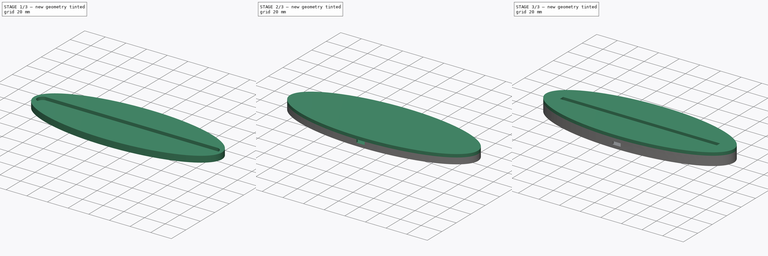
[diagram: build sequence overview — one tinted view per stage of 3, left to right]
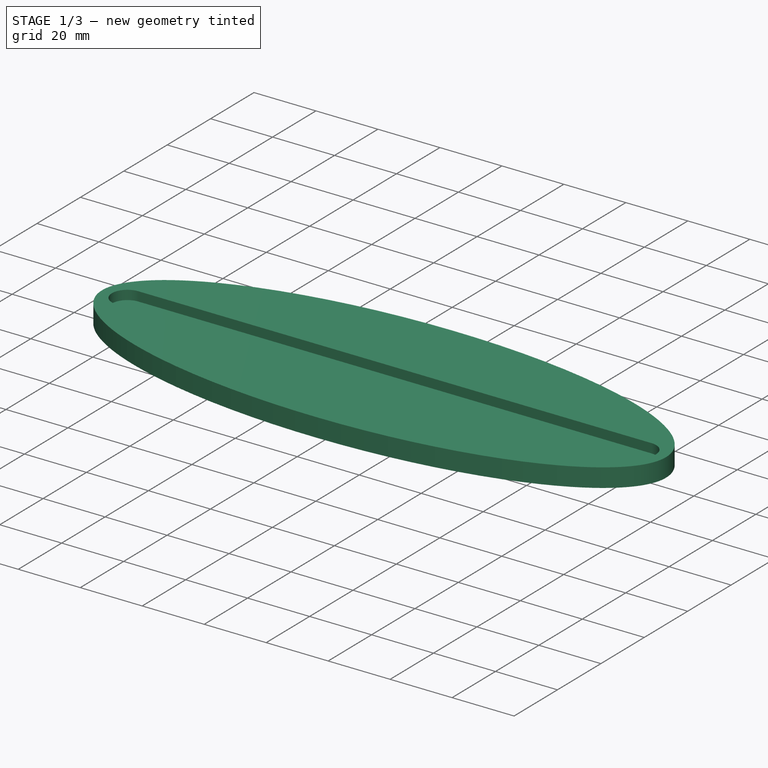
[diagram: stage 1 of 3 — iso view after this stage's code; geometry added in this stage tinted green]
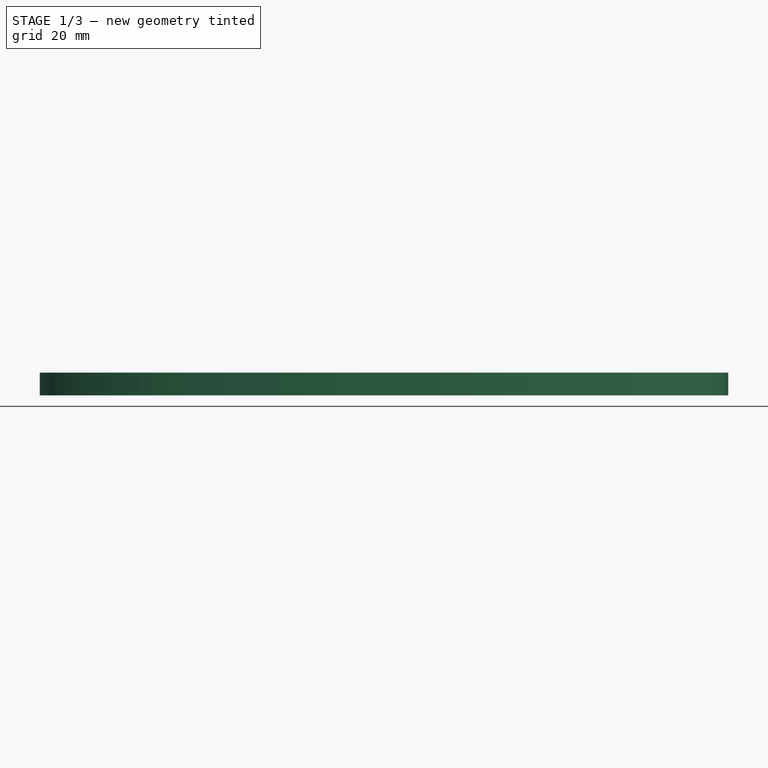
[diagram: stage 1 of 3 — front view after this stage's code; geometry added in this stage tinted green]
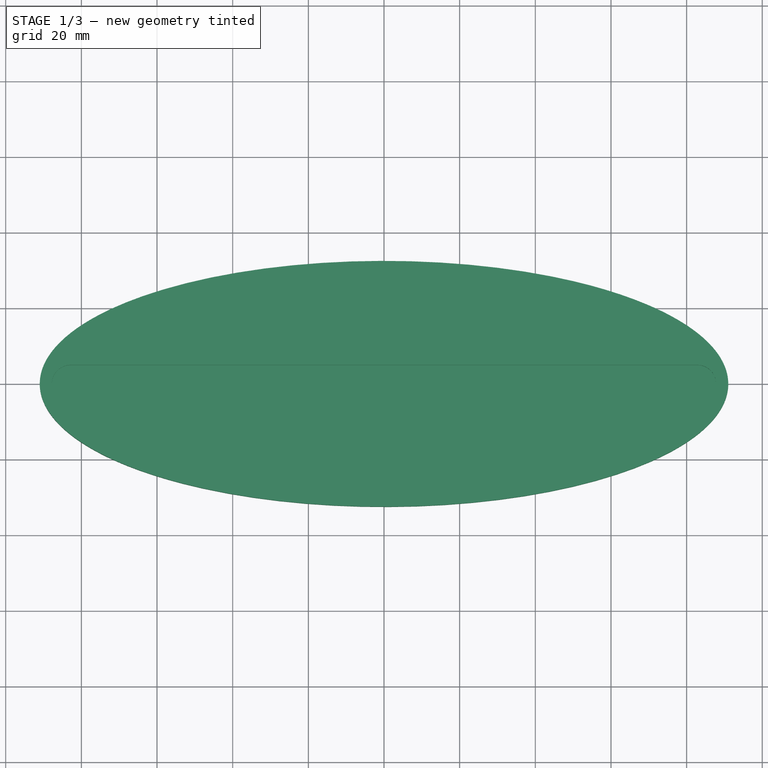
[diagram: stage 1 of 3 — top view after this stage's code; geometry added in this stage tinted green]
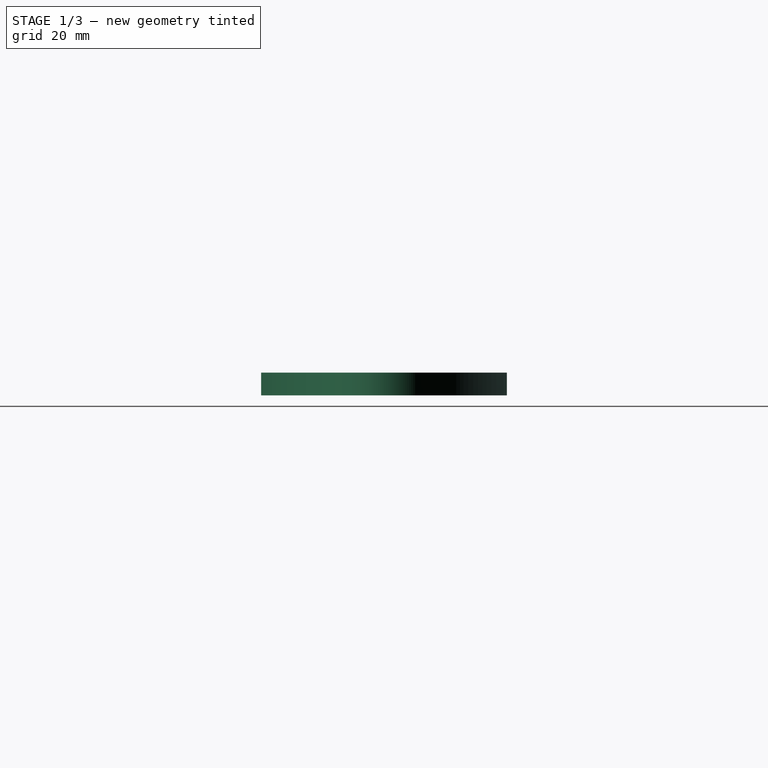
[diagram: stage 1 of 3 — right view after this stage's code; geometry added in this stage tinted green]
FCSTD DOCUMENT  (FreeCAD 0.17R13541 (Git))
Label: Acry-Oval-Base-10-4-Layers-Slit-Pre-Slice
License: All rights reserved
LicenseURL: http://en.wikipedia.org/wiki/All_rights_reserved
objects: Sketcher::SketchObject×7, PartDesign::Pocket×4, PartDesign::Pad×3, PartDesign::Body×1, App::Part×1
note: 22 computed .brp shape members not serialized (recipe doc carries the construction recipe); baked Part::Feature solids carry a one-line shape summary decoded from their .brp

FEATURE [Sketcher::SketchObject] Sketch
  MapMode = 5
  Support = -> [XY_Plane001]
  sketch-geometry (5):
    g0: Ellipse CenterX=0 CenterY=0 CenterZ=0 NormalX=0 NormalY=0 NormalZ=1 MajorRadius=91.0014 MinorRadius=32.5 AngleXU=0
    g1: LineSegment [constr] StartX=91.0014 StartY=0 StartZ=0 EndX=-91.0014 EndY=0 EndZ=0
    g2: LineSegment [constr] StartX=0 StartY=32.5 StartZ=0 EndX=0 EndY=-32.5 EndZ=0
    g3: GeomPoint X=85 Y=0 Z=0
    g4: GeomPoint X=-85 Y=0 Z=0
  constraints (5):
    c: InternalAlignment(g1-g4 -> g0) x4
    c: Coincident(g0,g-1)
    c: PointOnObject(g2,g-2)
    c: Distance(g3,g4) = 170
    c: Distance(g2,g2) = 65
FEATURE [PartDesign::Pad] Pad
  Length = 6
  Length2 = 100
  Profile = -> Sketch
  Type = 0
FEATURE [Sketcher::SketchObject] Sketch001
  MapMode = 5
  Placement = pos=(0,0,6) rot=(0,0,1;0rad)
  Support = -> [Pad]
  sketch-geometry (5):
    g0: ArcOfCircle CenterX=-82.8 CenterY=0 CenterZ=0 NormalX=0 NormalY=0 NormalZ=1 AngleXU=0 Radius=5 StartAngle=1.5708 EndAngle=4.71239
    g1: ArcOfCircle CenterX=82.8 CenterY=0 CenterZ=0 NormalX=0 NormalY=0 NormalZ=1 AngleXU=0 Radius=5 StartAngle=4.71239 EndAngle=7.85398
    g2: LineSegment StartX=-82.8 StartY=-5 StartZ=0 EndX=82.8 EndY=-5 EndZ=0
    g3: LineSegment StartX=-82.8 StartY=5 StartZ=0 EndX=82.8 EndY=5 EndZ=0
    g4: GeomPoint X=0 Y=5 Z=0
  constraints (12):
    c: Tangent(g0,g3) = 1.5708
    c: Tangent(g0,g2) = -1.5708
    c: Tangent(g2,g1) = -1.5708
    c: Tangent(g3,g1) = 1.5708
    c: Horizontal(g2)
    c: Equal(g0,g1)
    c: PointOnObject(g0,g-1)
    c: Distance(g1,g1) = 10
    c: PointOnObject(g4,g3)
    c: Symmetric(g1,g0,g4)
    c: PointOnObject(g4,g-2)
    c: Distance(g0,g1) = 165.6
FEATURE [PartDesign::Pocket] Pocket
  BaseFeature = -> Pad
  Length = 3
  Length2 = 100
  Profile = -> Sketch001
  Type = 0
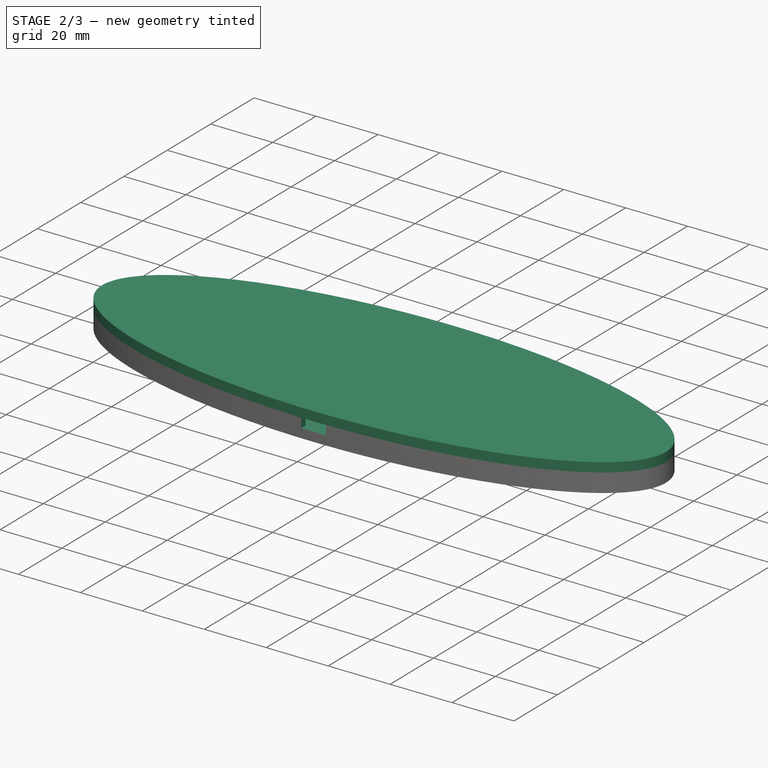
[diagram: stage 2 of 3 — iso view after this stage's code; geometry added in this stage tinted green]
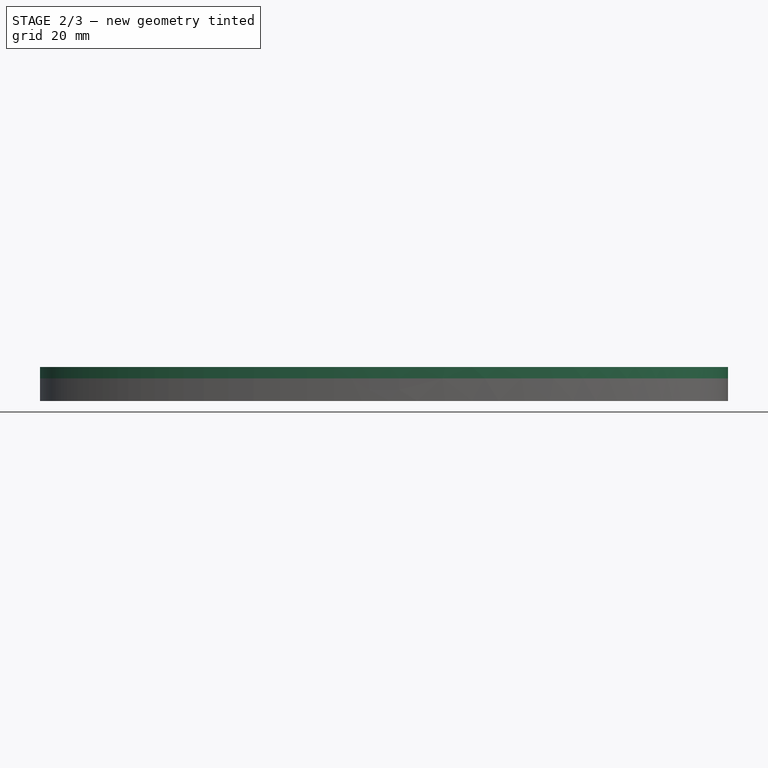
[diagram: stage 2 of 3 — front view after this stage's code; geometry added in this stage tinted green]
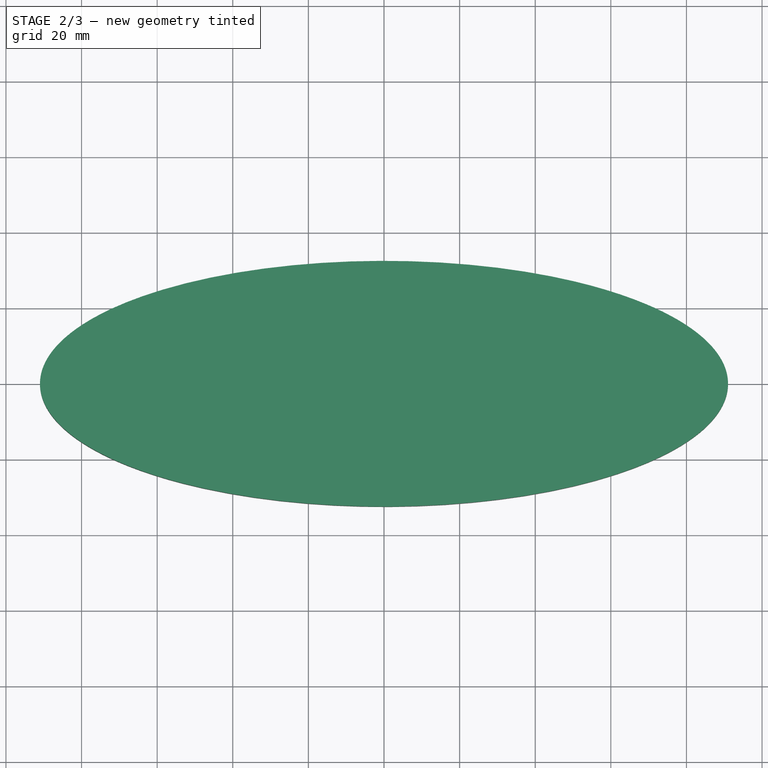
[diagram: stage 2 of 3 — top view after this stage's code; geometry added in this stage tinted green]
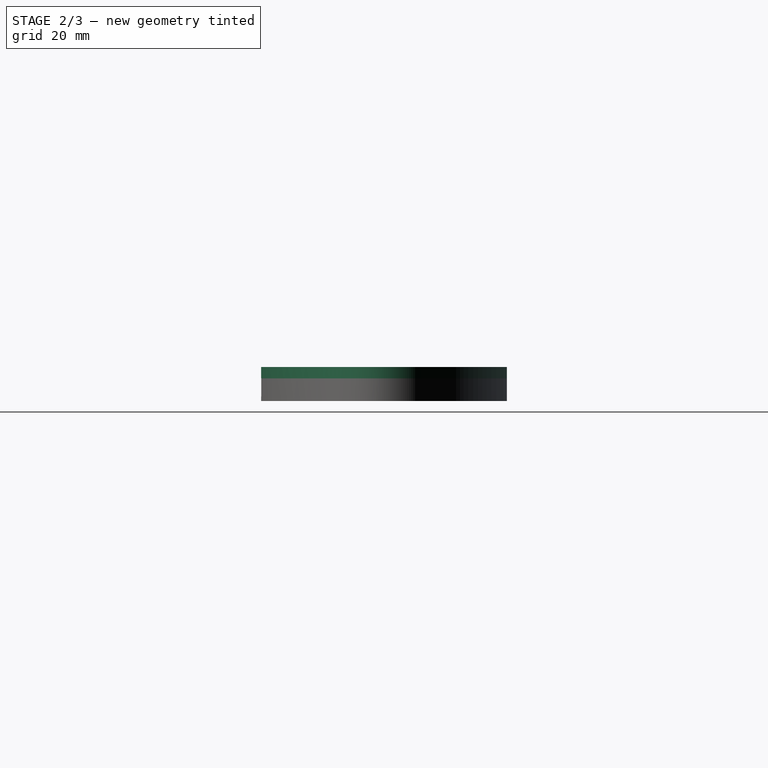
[diagram: stage 2 of 3 — right view after this stage's code; geometry added in this stage tinted green]
FEATURE [Sketcher::SketchObject] Sketch002
  ExternalGeometry = -> [Pocket]
  MapMode = 5
  Placement = pos=(0,0,6) rot=(0,0,1;0rad)
  Support = -> [Pocket]
  sketch-geometry (7):
    g0: LineSegment StartX=-9 StartY=-10.5 StartZ=0 EndX=9 EndY=-10.5 EndZ=0
    g1: LineSegment StartX=9 StartY=-10.5 StartZ=0 EndX=9 EndY=-30.5 EndZ=0
    g2: LineSegment StartX=9 StartY=-30.5 StartZ=0 EndX=-9 EndY=-30.5 EndZ=0
    g3: LineSegment StartX=-9 StartY=-30.5 StartZ=0 EndX=-9 EndY=-10.5 EndZ=0
    g4: GeomPoint X=0 Y=-10.5 Z=0
    g5: GeomPoint X=0 Y=-30.5 Z=0
    g6: GeomPoint X=0 Y=-32.5 Z=0
  constraints (18):
    c: Coincident(g0,g1)
    c: Coincident(g1,g2)
    c: Coincident(g2,g3)
    c: Coincident(g3,g0)
    c: Horizontal(g0)
    c: Horizontal(g2)
    c: Vertical(g1)
    c: Vertical(g3)
    c: Distance(g1) = 20
    c: Distance(g0) = 18
    c: PointOnObject(g4,g0)
    c: Symmetric(g0,g0,g4)
    c: PointOnObject(g4,g-2)
    c: PointOnObject(g5,g2)
    c: Symmetric(g1,g2,g5)
    c: PointOnObject(g6,g-3)
    c: PointOnObject(g6,g-2)
    c: Distance(g5,g6) = 2
FEATURE [PartDesign::Pocket] Pocket001
  BaseFeature = -> Pocket
  Length = 3
  Length2 = 100
  Profile = -> Sketch002
  Type = 0
FEATURE [Sketcher::SketchObject] Sketch003
  ExternalGeometry = -> [Pocket001]
  MapMode = 5
  Placement = pos=(0,0,6) rot=(0,0,1;0rad)
  Support = -> [Pocket001]
  sketch-geometry (9):
    g0: LineSegment StartX=-6 StartY=-5 StartZ=0 EndX=6 EndY=-5 EndZ=0
    g1: LineSegment StartX=6 StartY=-5 StartZ=0 EndX=6 EndY=-10.5 EndZ=0
    g2: LineSegment StartX=6 StartY=-10.5 StartZ=0 EndX=-6 EndY=-10.5 EndZ=0
    g3: LineSegment StartX=-6 StartY=-10.5 StartZ=0 EndX=-6 EndY=-5 EndZ=0
    g4: LineSegment StartX=-4 StartY=-30.5 StartZ=0 EndX=4 EndY=-30.5 EndZ=0
    g5: LineSegment StartX=4 StartY=-30.5 StartZ=0 EndX=4 EndY=-32.6 EndZ=0
    g6: LineSegment StartX=4 StartY=-32.6 StartZ=0 EndX=-4 EndY=-32.6 EndZ=0
    g7: LineSegment StartX=-4 StartY=-32.6 StartZ=0 EndX=-4 EndY=-30.5 EndZ=0
    g8: GeomPoint X=0 Y=-30.5 Z=0
  constraints (26):
    c: Coincident(g0,g1)
    c: Coincident(g1,g2)
    c: Coincident(g2,g3)
    c: Coincident(g3,g0)
    c: Horizontal(g0)
    c: Horizontal(g2)
    c: Vertical(g1)
    c: Vertical(g3)
    c: PointOnObject(g0,g-3)
    c: PointOnObject(g1,g-4)
    c: Distance(g1,g-4) = 3
    c: Distance(g-4,g2) = 3
    c: Coincident(g4,g5)
    c: Coincident(g5,g6)
    c: Coincident(g6,g7)
    c: Coincident(g7,g4)
    c: Horizontal(g4)
    c: Horizontal(g6)
    c: Vertical(g5)
    c: Vertical(g7)
    c: PointOnObject(g4,g-5)
    c: PointOnObject(g8,g4)
    c: Symmetric(g4,g4,g8)
    c: PointOnObject(g8,g-2)
    c: Distance(g5,g6) = 8
    c: Distance(g5) = 2.1
FEATURE [PartDesign::Pocket] Pocket002
  BaseFeature = -> Pocket001
  Length = 3
  Length2 = 100
  Profile = -> Sketch003
  Type = 0
FEATURE [Sketcher::SketchObject] Sketch004
  ExternalGeometry = -> [Pocket002]
  MapMode = 5
  Placement = pos=(0,0,6) rot=(0,0,1;0rad)
  Support = -> [Pocket002]
  sketch-geometry (6):
    g0: Ellipse CenterX=0 CenterY=0 CenterZ=0 NormalX=0 NormalY=0 NormalZ=1 MajorRadius=91.0014 MinorRadius=32.5 AngleXU=0
    g1: LineSegment [constr] StartX=91.0014 StartY=0 StartZ=0 EndX=-91.0014 EndY=0 EndZ=0
    g2: LineSegment [constr] StartX=0 StartY=32.5 StartZ=0 EndX=0 EndY=-32.5 EndZ=0
    g3: GeomPoint X=85 Y=0 Z=0
    g4: GeomPoint X=-85 Y=0 Z=0
    g5: GeomPoint X=0 Y=-32.5 Z=0
  constraints (7):
    c: InternalAlignment(g1-g4 -> g0) x4
    c: Coincident(g0,g-1)
    c: PointOnObject(g-3,g0)
    c: PointOnObject(g5,g0)
    c: PointOnObject(g5,g-3)
    c: Tangent(g0,g-3,g5) = -1.5708
    c: PointOnObject(g5,g2)
FEATURE [PartDesign::Pad] Pad001
  BaseFeature = -> Pocket002
  Length = 3
  Length2 = 100
  Profile = -> Sketch004
  Type = 0
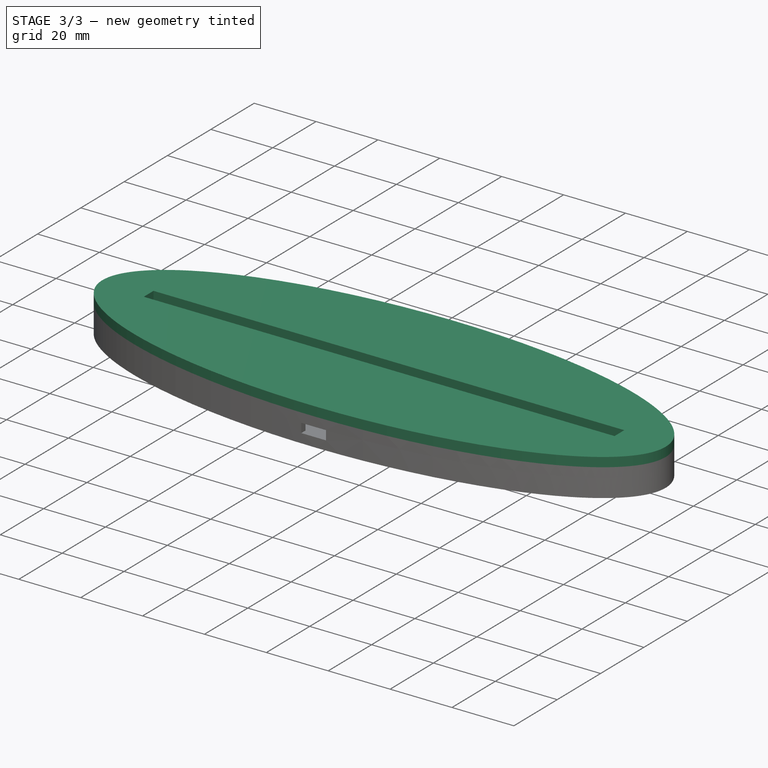
[diagram: stage 3 of 3 — iso view after this stage's code; geometry added in this stage tinted green]
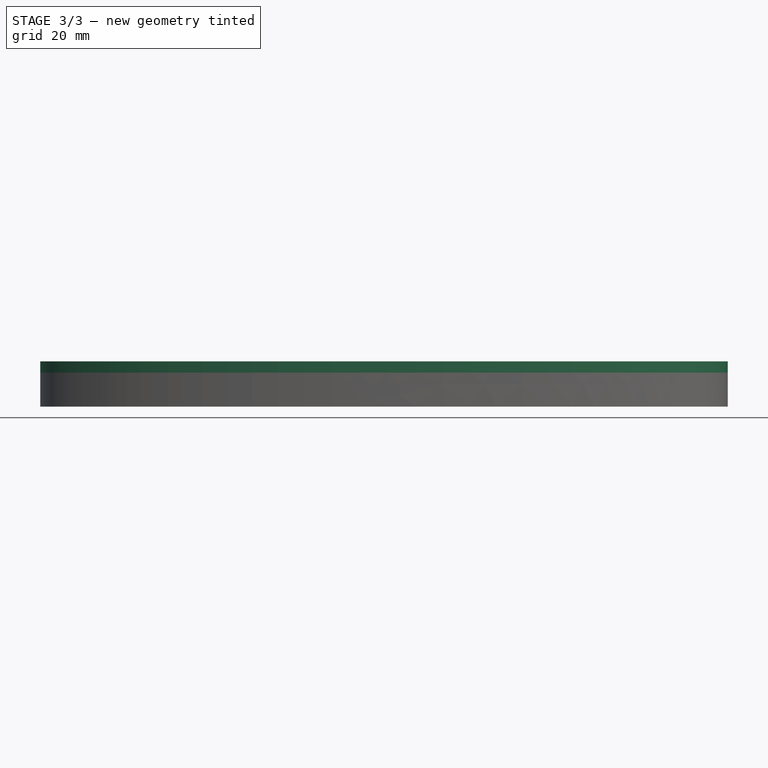
[diagram: stage 3 of 3 — front view after this stage's code; geometry added in this stage tinted green]
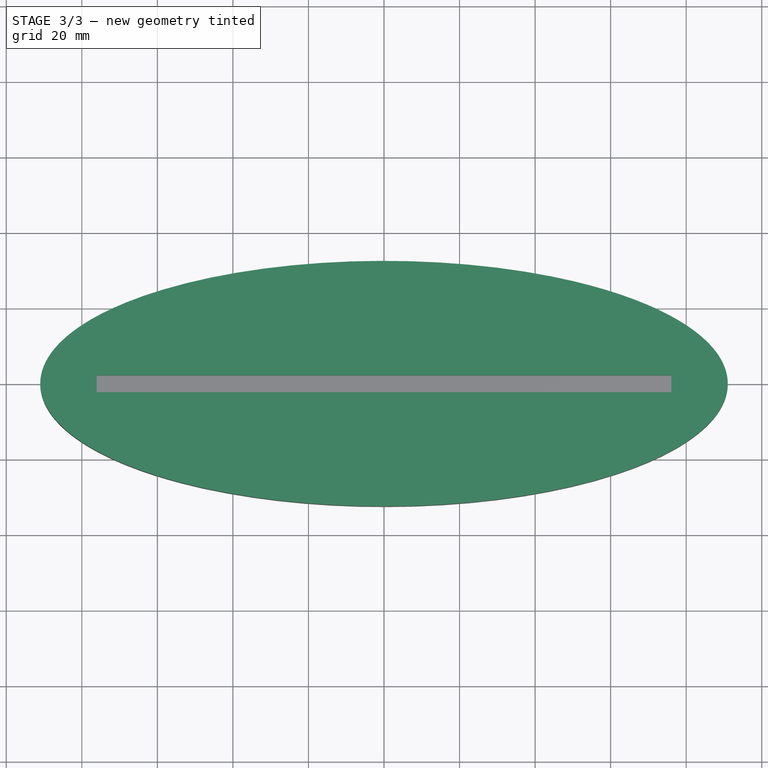
[diagram: stage 3 of 3 — top view after this stage's code; geometry added in this stage tinted green]
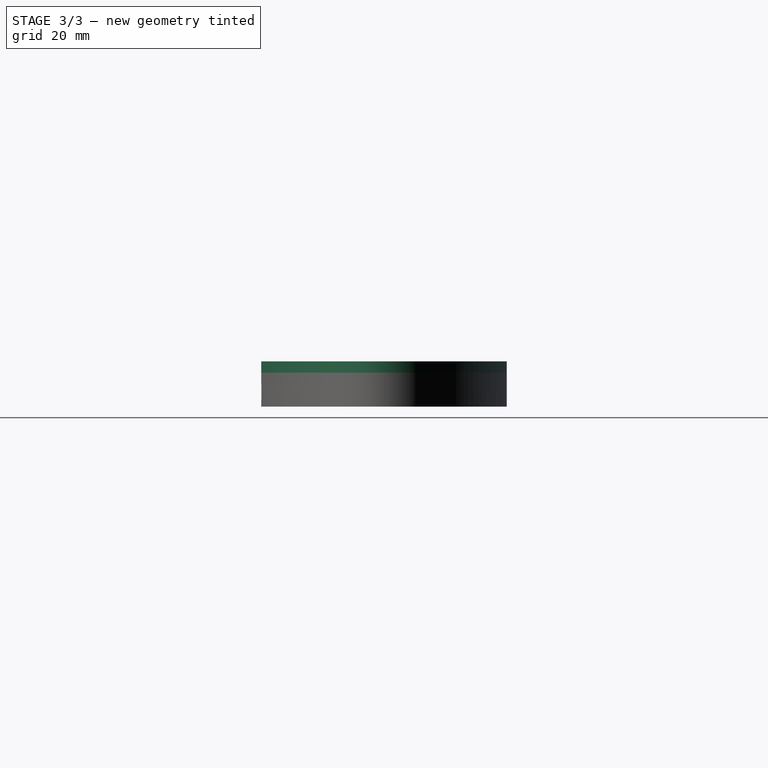
[diagram: stage 3 of 3 — right view after this stage's code; geometry added in this stage tinted green]
FEATURE [Sketcher::SketchObject] Sketch005
  MapMode = 5
  Placement = pos=(0,0,9) rot=(0,0,1;0rad)
  Support = -> [Pad001]
  sketch-geometry (6):
    g0: LineSegment StartX=-82.075 StartY=2.22 StartZ=0 EndX=82.075 EndY=2.22 EndZ=0
    g1: LineSegment StartX=82.075 StartY=2.22 StartZ=0 EndX=82.075 EndY=-2.22 EndZ=0
    g2: LineSegment StartX=82.075 StartY=-2.22 StartZ=0 EndX=-82.075 EndY=-2.22 EndZ=0
    g3: LineSegment StartX=-82.075 StartY=-2.22 StartZ=0 EndX=-82.075 EndY=2.22 EndZ=0
    g4: GeomPoint X=0 Y=2.22 Z=0
    g5: GeomPoint X=82.075 Y=0 Z=0
  constraints (16):
    c: Coincident(g0,g1)
    c: Coincident(g1,g2)
    c: Coincident(g2,g3)
    c: Coincident(g3,g0)
    c: Horizontal(g0)
    c: Horizontal(g2)
    c: Vertical(g1)
    c: Vertical(g3)
    c: Distance(g1) = 4.44
    c: Distance(g0) = 164.15
    c: PointOnObject(g4,g0)
    c: Symmetric(g0,g0,g4)
    c: PointOnObject(g5,g1)
    c: Symmetric(g0,g1,g5)
    c: PointOnObject(g5,g-1)
    c: PointOnObject(g4,g-2)
FEATURE [PartDesign::Pocket] Pocket003
  BaseFeature = -> Pad001
  Length = 3
  Length2 = 100
  Profile = -> Sketch005
  Type = 0
FEATURE [Sketcher::SketchObject] Sketch006
  ExternalGeometry = -> [Pocket003]
  MapMode = 5
  Placement = pos=(0,0,9) rot=(0,0,1;0rad)
  Support = -> [Pocket003]
  sketch-geometry (13):
    g0: LineSegment StartX=-76.075 StartY=2.25 StartZ=0 EndX=76.075 EndY=2.25 EndZ=0
    g1: LineSegment StartX=76.075 StartY=2.25 StartZ=0 EndX=76.075 EndY=-2.25 EndZ=0
    g2: LineSegment StartX=76.075 StartY=-2.25 StartZ=0 EndX=-76.075 EndY=-2.25 EndZ=0
    g3: LineSegment StartX=-76.075 StartY=-2.25 StartZ=0 EndX=-76.075 EndY=2.25 EndZ=0
    g4: GeomPoint X=0 Y=2.25 Z=0
    g5: GeomPoint X=76.075 Y=0 Z=0
    g6: Ellipse CenterX=0 CenterY=0 CenterZ=0 NormalX=0 NormalY=0 NormalZ=1 MajorRadius=91.0014 MinorRadius=32.5 AngleXU=0
    g7: LineSegment [constr] StartX=91.0014 StartY=1e-12 StartZ=0 EndX=-91.0014 EndY=-1e-12 EndZ=0
    g8: LineSegment [constr] StartX=0 StartY=32.5 StartZ=0 EndX=0 EndY=-32.5 EndZ=0
    g9: GeomPoint X=85 Y=1e-12 Z=0
    g10: GeomPoint X=-85 Y=-1e-12 Z=0
    g11: GeomPoint X=16.0187 Y=31.9925 Z=0
    g12: GeomPoint X=1.28442 Y=32.4968 Z=0
  constraints (24):
    c: Coincident(g0,g1)
    c: Coincident(g1,g2)
    c: Coincident(g2,g3)
    c: Coincident(g3,g0)
    c: Horizontal(g0)
    c: Horizontal(g2)
    c: Vertical(g1)
    c: Vertical(g3)
    c: Distance(g1) = 4.5
    c: PointOnObject(g4,g0)
    c: Symmetric(g0,g0,g4)
    c: PointOnObject(g5,g1)
    c: Symmetric(g0,g1,g5)
    c: Distance(g2) = 152.15
    c: PointOnObject(g4,g-2)
    c: PointOnObject(g5,g-1)
    c: InternalAlignment(g7-g10 -> g6) x4
    c: Coincident(g6,g-1)
    c: PointOnObject(g11,g6)
    c: PointOnObject(g11,g-3)
    c: Tangent(g6,g-3,g11) = -1.5708
    c: PointOnObject(g12,g6)
    c: PointOnObject(g12,g-3)
    c: Tangent(g6,g-3,g12) = -1.5708
FEATURE [PartDesign::Pad] Pad002
  BaseFeature = -> Pocket003
  Length = 3
  Length2 = 100
  Profile = -> Sketch006
  Type = 0
FEATURE [PartDesign::Body] Body
  Group = -> [Sketch,Pad,Sketch001,Pocket,Sketch002,Pocket001,Sketch003,Pocket002,Sketch004,Pad001,Sketch005,Pocket003,Sketch006,Pad002]
  Origin = -> Origin001
  Tip = -> Pad002
FEATURE [App::Part] Part
  Group = -> [Body]
  License = CC BY 3.0
  LicenseURL = http://creativecommons.org/licenses/by/3.0/
  Origin = -> Origin
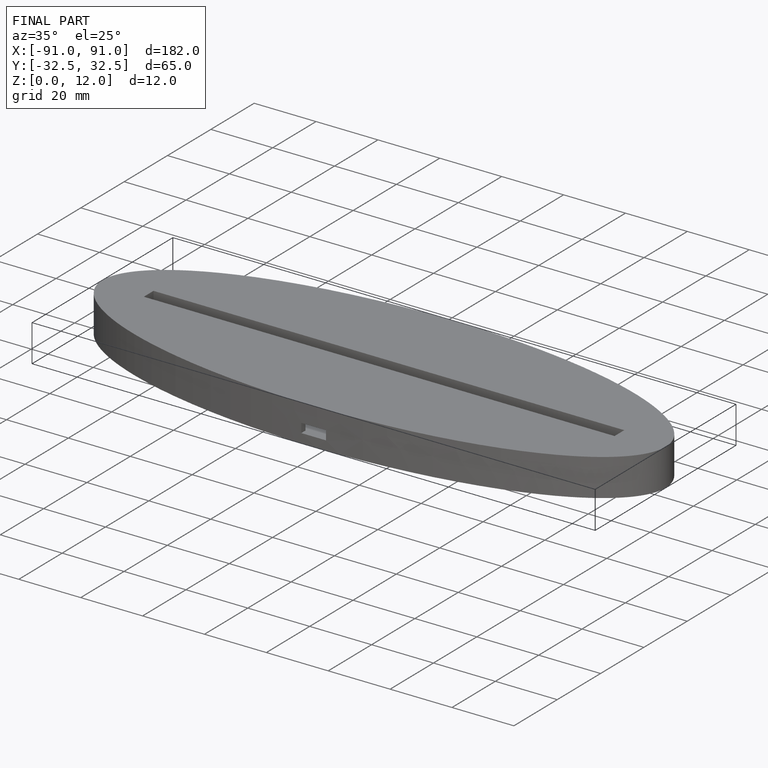
[diagram: finished part — iso view with bounding-box wireframe]
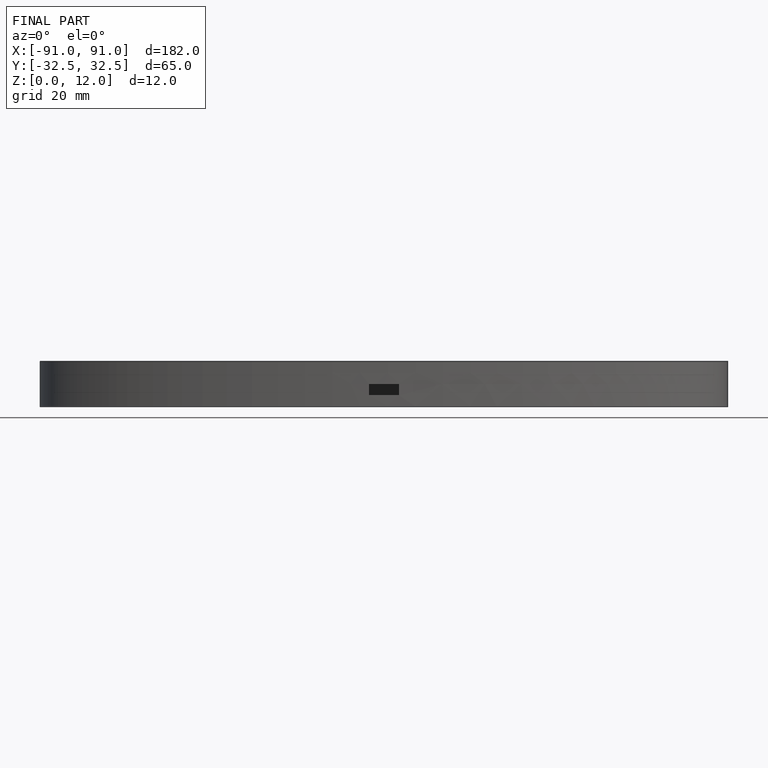
[diagram: finished part — front view with bounding-box wireframe]
